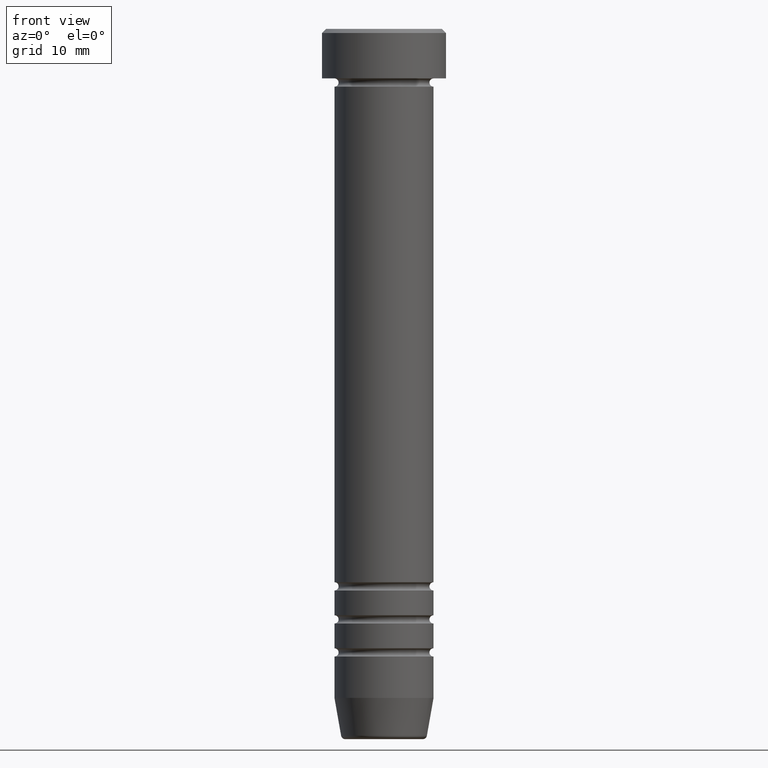
[diagram: clean part render]
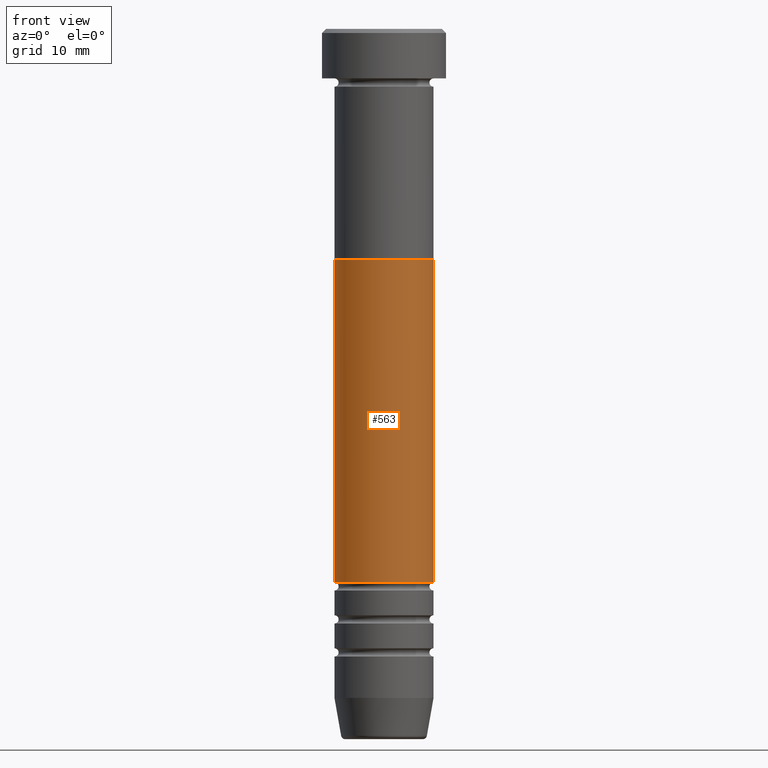
[diagram: same view with one face highlighted and labeled with its STEP entity id]
A machine part, front view. The second image highlights one B-rep face of the part: STEP entity #563.
In plain terms, the highlighted cylindrical surface (partial cylindrical patch) has radius 6 mm, axis along (-0, -0, 1).
Its self-contained STEP definition (entity closure, byte-faithful):
#11 = LINE ( 'NONE', #1077, #1061 ) ;
#21 = LINE ( 'NONE', #812, #521 ) ;
#37 = ORIENTED_EDGE ( 'NONE', *, *, #961, .T. ) ;
#39 = DIRECTION ( 'NONE',  ( -0.000000000000000000, -0.000000000000000000, 1.000000000000000000 ) ) ;
#46 = DIRECTION ( 'NONE',  ( -0.000000000000000000, -0.000000000000000000, 1.000000000000000000 ) ) ;
#90 = CIRCLE ( 'NONE', #660, 5.999999999999995559 ) ;
#170 = FACE_OUTER_BOUND ( 'NONE', #871, .T. ) ;
#178 = CARTESIAN_POINT ( 'NONE',  ( -6.000000000000000888, 7.347880794884120722E-16, -28.00000000000000000 ) ) ;
#239 = DIRECTION ( 'NONE',  ( -0.000000000000000000, -0.000000000000000000, 1.000000000000000000 ) ) ;
#356 = EDGE_CURVE ( 'NONE', #793, #717, #732, .T. ) ;
#362 = DIRECTION ( 'NONE',  ( 1.000000000000000000, 0.000000000000000000, 0.000000000000000000 ) ) ;
#366 = AXIS2_PLACEMENT_3D ( 'NONE', #887, #239, #869 ) ;
#372 = CARTESIAN_POINT ( 'NONE',  ( 5.999999999999995559, 0.000000000000000000, -67.00000000000000000 ) ) ;
#398 = CARTESIAN_POINT ( 'NONE',  ( -5.999999999999995559, 7.347880794884116778E-16, -67.00000000000000000 ) ) ;
#471 = CARTESIAN_POINT ( 'NONE',  ( 6.000000000000000888, 0.000000000000000000, -28.00000000000000000 ) ) ;
#485 = CARTESIAN_POINT ( 'NONE',  ( 0.000000000000000000, 0.000000000000000000, -67.00000000000000000 ) ) ;
#521 = VECTOR ( 'NONE', #737, 1000.000000000000000 ) ;
#525 = ORIENTED_EDGE ( 'NONE', *, *, #811, .F. ) ;
#563 = ADVANCED_FACE ( 'NONE', ( #170 ), #614, .T. ) ;
#568 = CARTESIAN_POINT ( 'NONE',  ( 0.000000000000000000, 0.000000000000000000, -28.00000000000000000 ) ) ;
#614 = CYLINDRICAL_SURFACE ( 'NONE', #366, 5.999999999999998224 ) ;
#660 = AXIS2_PLACEMENT_3D ( 'NONE', #485, #46, #1088 ) ;
#717 = VERTEX_POINT ( 'NONE', #471 ) ;
#732 = CIRCLE ( 'NONE', #1008, 6.000000000000000888 ) ;
#737 = DIRECTION ( 'NONE',  ( -0.000000000000000000, -0.000000000000000000, 1.000000000000000000 ) ) ;
#793 = VERTEX_POINT ( 'NONE', #178 ) ;
#811 = EDGE_CURVE ( 'NONE', #969, #793, #11, .T. ) ;
#812 = CARTESIAN_POINT ( 'NONE',  ( 5.999999999999998224, 0.000000000000000000, 0.000000000000000000 ) ) ;
#869 = DIRECTION ( 'NONE',  ( 1.000000000000000000, 0.000000000000000000, 0.000000000000000000 ) ) ;
#871 = EDGE_LOOP ( 'NONE', ( #525, #883, #37, #910 ) ) ;
#883 = ORIENTED_EDGE ( 'NONE', *, *, #1093, .T. ) ;
#887 = CARTESIAN_POINT ( 'NONE',  ( 0.000000000000000000, 0.000000000000000000, 0.000000000000000000 ) ) ;
#904 = VERTEX_POINT ( 'NONE', #372 ) ;
#910 = ORIENTED_EDGE ( 'NONE', *, *, #356, .F. ) ;
#961 = EDGE_CURVE ( 'NONE', #904, #717, #21, .T. ) ;
#969 = VERTEX_POINT ( 'NONE', #398 ) ;
#1008 = AXIS2_PLACEMENT_3D ( 'NONE', #568, #39, #362 ) ;
#1061 = VECTOR ( 'NONE', #1118, 1000.000000000000000 ) ;
#1077 = CARTESIAN_POINT ( 'NONE',  ( -5.999999999999998224, 7.347880794884117764E-16, 0.000000000000000000 ) ) ;
#1088 = DIRECTION ( 'NONE',  ( 1.000000000000000000, 0.000000000000000000, 0.000000000000000000 ) ) ;
#1093 = EDGE_CURVE ( 'NONE', #969, #904, #90, .T. ) ;
#1118 = DIRECTION ( 'NONE',  ( -0.000000000000000000, -0.000000000000000000, 1.000000000000000000 ) ) ;